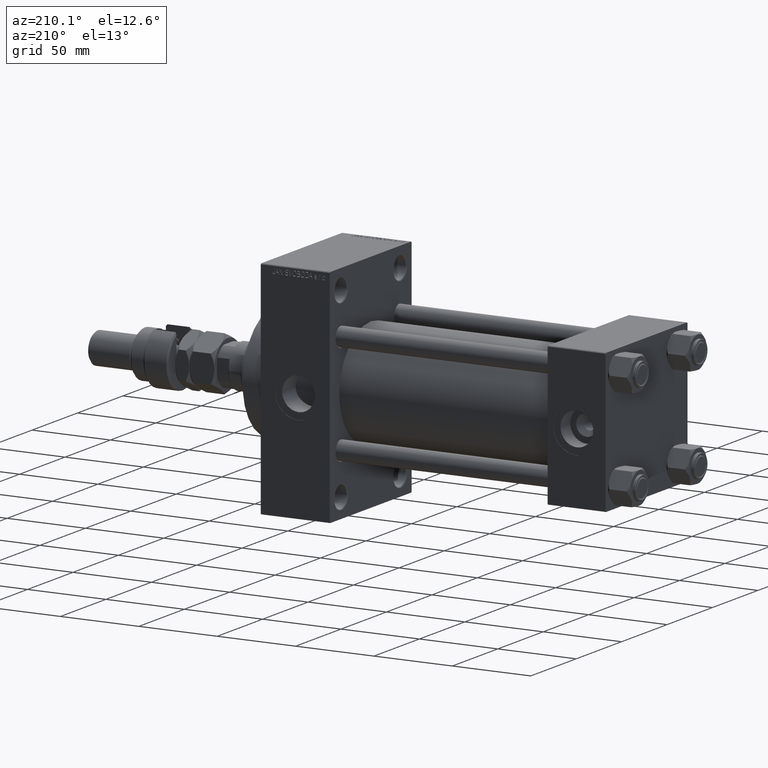
[diagram: clean part render]
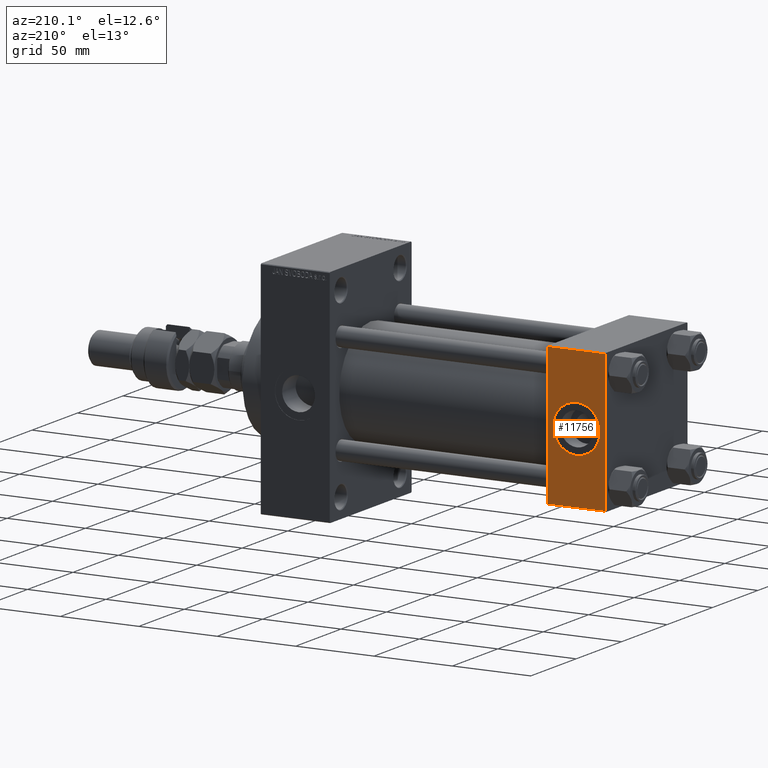
[diagram: same view with one face highlighted and labeled with its STEP entity id]
A machine part, auxiliary view. The second image highlights one B-rep face of the part: STEP entity #11756.
In plain terms, the highlighted planar face has unit normal (0, 1, 0).
Its self-contained STEP definition (entity closure, byte-faithful):
#1977 = VECTOR ( 'NONE', #31924, 1000.000000000000000 ) ;
#5034 = DIRECTION ( 'NONE',  ( 0.000000000000000000, 1.000000000000000000, 0.000000000000000000 ) ) ;
#6556 = CARTESIAN_POINT ( 'NONE',  ( 37.00000000000000000, 44.99999999999998579, -44.49999999999998579 ) ) ;
#9155 = CARTESIAN_POINT ( 'NONE',  ( 37.00000000000000000, 44.99999999999998579, 45.00000000000001421 ) ) ;
#9620 = EDGE_LOOP ( 'NONE', ( #39188, #12073, #14498, #30775 ) ) ;
#11756 = ADVANCED_FACE ( 'NONE', ( #16758, #32225 ), #28412, .T. ) ;
#12073 = ORIENTED_EDGE ( 'NONE', *, *, #31692, .T. ) ;
#12805 = VERTEX_POINT ( 'NONE', #14380 ) ;
#13705 = DIRECTION ( 'NONE',  ( 0.000000000000000000, -0.000000000000000000, 1.000000000000000000 ) ) ;
#14035 = AXIS2_PLACEMENT_3D ( 'NONE', #39745, #5034, #27584 ) ;
#14123 = CARTESIAN_POINT ( 'NONE',  ( 18.50000000000000000, 44.99999999999998579, 15.00000000000000178 ) ) ;
#14380 = CARTESIAN_POINT ( 'NONE',  ( 37.00000000000000000, 44.99999999999998579, -44.49999999999995737 ) ) ;
#14498 = ORIENTED_EDGE ( 'NONE', *, *, #27595, .F. ) ;
#14892 = CARTESIAN_POINT ( 'NONE',  ( 18.50000000000000000, 44.99999999999998579, 0.000000000000000000 ) ) ;
#15186 = AXIS2_PLACEMENT_3D ( 'NONE', #9155, #22562, #13705 ) ;
#16641 = EDGE_CURVE ( 'NONE', #34180, #28083, #21001, .T. ) ;
#16758 = FACE_BOUND ( 'NONE', #21542, .T. ) ;
#17383 = ORIENTED_EDGE ( 'NONE', *, *, #39043, .F. ) ;
#19930 = DIRECTION ( 'NONE',  ( 0.000000000000000000, 0.000000000000000000, 1.000000000000000000 ) ) ;
#21001 = CIRCLE ( 'NONE', #41215, 15.00000000000000178 ) ;
#21135 = LINE ( 'NONE', #25182, #26947 ) ;
#21542 = EDGE_LOOP ( 'NONE', ( #22477, #17383 ) ) ;
#22477 = ORIENTED_EDGE ( 'NONE', *, *, #16641, .F. ) ;
#22562 = DIRECTION ( 'NONE',  ( -0.000000000000000000, 1.000000000000000000, 0.000000000000000000 ) ) ;
#23818 = CARTESIAN_POINT ( 'NONE',  ( 0.000000000000000000, 44.99999999999998579, -44.49999999999995737 ) ) ;
#24367 = CARTESIAN_POINT ( 'NONE',  ( 0.000000000000000000, 44.99999999999998579, 44.50000000000001421 ) ) ;
#25182 = CARTESIAN_POINT ( 'NONE',  ( 0.000000000000000000, 44.99999999999998579, 45.00000000000001421 ) ) ;
#25691 = DIRECTION ( 'NONE',  ( 0.000000000000000000, 0.000000000000000000, -1.000000000000000000 ) ) ;
#26317 = LINE ( 'NONE', #6556, #41243 ) ;
#26947 = VECTOR ( 'NONE', #25691, 1000.000000000000000 ) ;
#27051 = VERTEX_POINT ( 'NONE', #24367 ) ;
#27285 = DIRECTION ( 'NONE',  ( 0.000000000000000000, 1.000000000000000000, 0.000000000000000000 ) ) ;
#27398 = LINE ( 'NONE', #35506, #34916 ) ;
#27584 = DIRECTION ( 'NONE',  ( 0.000000000000000000, 0.000000000000000000, 1.000000000000000000 ) ) ;
#27595 = EDGE_CURVE ( 'NONE', #27051, #45022, #21135, .T. ) ;
#28083 = VERTEX_POINT ( 'NONE', #34487 ) ;
#28412 = PLANE ( 'NONE',  #15186 ) ;
#30775 = ORIENTED_EDGE ( 'NONE', *, *, #44205, .T. ) ;
#31676 = LINE ( 'NONE', #43315, #1977 ) ;
#31692 = EDGE_CURVE ( 'NONE', #12805, #45022, #26317, .T. ) ;
#31924 = DIRECTION ( 'NONE',  ( 1.000000000000000000, 0.000000000000000000, 0.000000000000000000 ) ) ;
#32225 = FACE_OUTER_BOUND ( 'NONE', #9620, .T. ) ;
#32779 = CARTESIAN_POINT ( 'NONE',  ( 37.00000000000000000, 44.99999999999998579, 44.50000000000001421 ) ) ;
#34180 = VERTEX_POINT ( 'NONE', #14123 ) ;
#34487 = CARTESIAN_POINT ( 'NONE',  ( 18.50000000000000355, 44.99999999999998579, -15.00000000000000178 ) ) ;
#34916 = VECTOR ( 'NONE', #39556, 1000.000000000000000 ) ;
#35339 = EDGE_CURVE ( 'NONE', #40663, #12805, #27398, .T. ) ;
#35506 = CARTESIAN_POINT ( 'NONE',  ( 37.00000000000000000, 44.99999999999998579, 45.00000000000001421 ) ) ;
#37520 = CIRCLE ( 'NONE', #14035, 15.00000000000000178 ) ;
#37974 = DIRECTION ( 'NONE',  ( -1.000000000000000000, 0.000000000000000000, 0.000000000000000000 ) ) ;
#39043 = EDGE_CURVE ( 'NONE', #28083, #34180, #37520, .T. ) ;
#39188 = ORIENTED_EDGE ( 'NONE', *, *, #35339, .T. ) ;
#39556 = DIRECTION ( 'NONE',  ( 0.000000000000000000, 0.000000000000000000, -1.000000000000000000 ) ) ;
#39745 = CARTESIAN_POINT ( 'NONE',  ( 18.50000000000000000, 44.99999999999998579, 0.000000000000000000 ) ) ;
#40663 = VERTEX_POINT ( 'NONE', #32779 ) ;
#41215 = AXIS2_PLACEMENT_3D ( 'NONE', #14892, #27285, #19930 ) ;
#41243 = VECTOR ( 'NONE', #37974, 1000.000000000000000 ) ;
#43315 = CARTESIAN_POINT ( 'NONE',  ( 37.00000000000000000, 44.99999999999998579, 44.50000000000001421 ) ) ;
#44205 = EDGE_CURVE ( 'NONE', #27051, #40663, #31676, .T. ) ;
#45022 = VERTEX_POINT ( 'NONE', #23818 ) ;